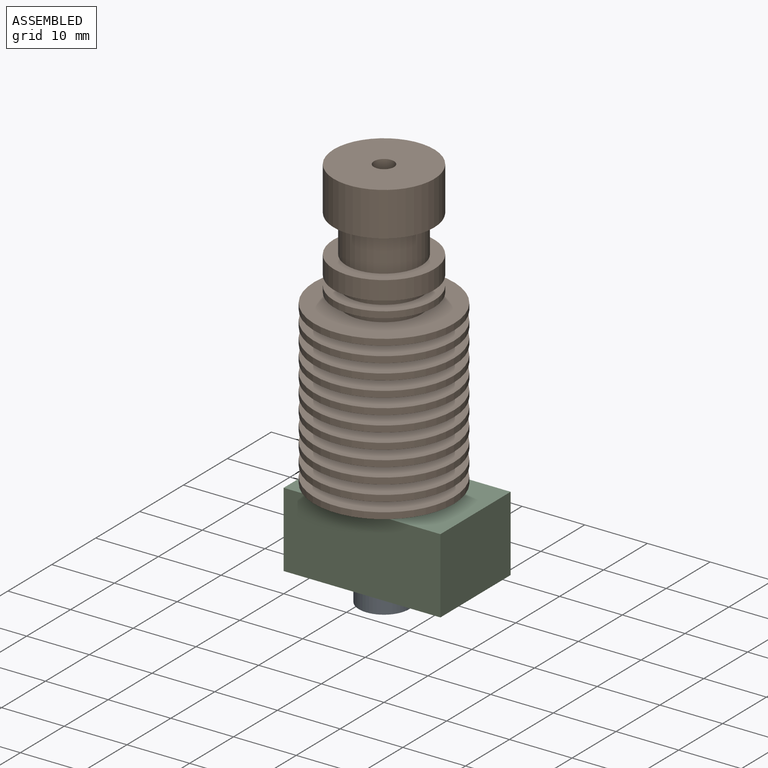
[diagram: assembled view]
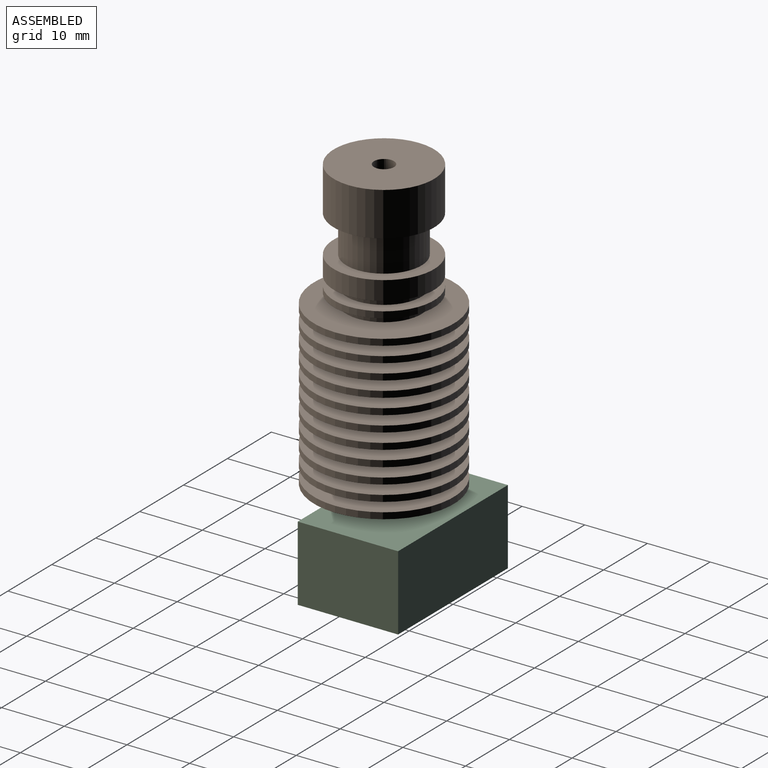
[diagram: assembled view, second angle]
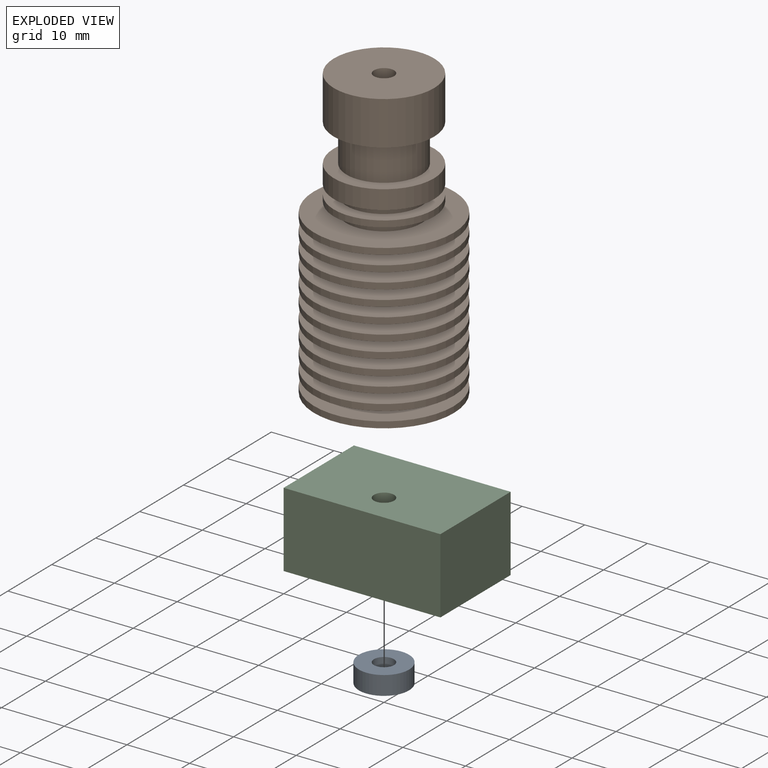
[diagram: exploded view]
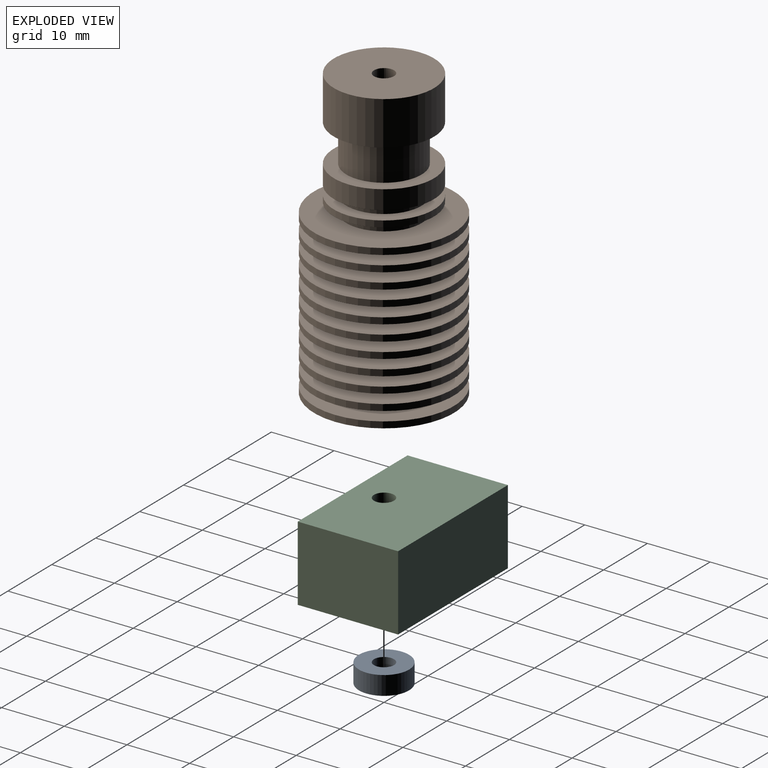
[diagram: exploded view, second angle]
ASSEMBLY  parts=3 mates=2
PART A: 7 faces, bbox 8x8x4.7 mm
  f0: cylinder r=1.6mm len=3.2mm, axis (0,0,1), area 21.2mm2, adj f1,f6
  f1: cone r=1.6mm half-angle=35deg, axis (0,0,-1), area 13.8mm2, adj f0,f2
  f2: cylinder r=0.2mm len=0.6mm, axis (0,0,1), area 0.7mm2, adj f1,f3
  f3: cone r=1.39mm half-angle=35deg, axis (0,0,-1), area 10.4mm2, adj f2,f4
  f4: plane 8x8mm, normal (0,0,1), area 44.2mm2, adj f3,f5
  f5: cylinder r=4mm len=8mm, axis (0,0,1), area 75.4mm2, adj f4,f6
  f6: plane 8x8mm, normal (0,0,-1), area 42.2mm2, adj f0,f5
PART B: 58 faces, bbox 22.3x22.3x48.1 mm
  f0: cylinder r=2.4mm len=4.8mm, axis (0,0,-1), area 31.7mm2, adj f1,f57
  f1: plane 4.8x4.8mm, normal (0,0,-1), area 10.1mm2, adj f0,f2
  f2: cylinder r=1.6mm len=48.1mm, axis (0,0,-1), area 483.6mm2, adj f1,f3
  f3: plane 16x16mm, normal (0,0,1), area 193mm2, adj f2,f4
  f4: cylinder r=8mm len=16mm, axis (0,0,-1), area 351.9mm2, adj f3,f5
  f5: plane 16x16mm, normal (0,0,-1), area 88mm2, adj f4,f6
  f6: cylinder r=6mm len=12mm, axis (0,0,-1), area 226.2mm2, adj f5,f7
  f7: plane 16x16mm, normal (0,0,1), area 88mm2, adj f6,f8
  f8: cylinder r=8mm len=16mm, axis (0,0,-1), area 150.8mm2, adj f7,f9
  f9: plane 16x16mm, normal (0,0,-1), area 88mm2, adj f8,f10
  f10: cylinder r=6mm len=12mm, axis (0,0,-1), area 56.5mm2, adj f9,f11
  f11: plane 16x16mm, normal (0,0,1), area 88mm2, adj f10,f12
  f12: cylinder r=8mm len=16mm, axis (0,0,-1), area 50.3mm2, adj f11,f13
  f13: plane 16x16mm, normal (0,0,-1), area 88mm2, adj f12,f14
  f14: cylinder r=6mm len=12mm, axis (0,0,-1), area 56.5mm2, adj f13,f15
  f15: plane 22.3x22.3mm, normal (0,0,1), area 277.5mm2, adj f14,f16
  f16: cylinder r=11.15mm len=22.3mm, axis (0,0,-1), area 70.1mm2, adj f15,f17
  f17: plane 22.3x22.3mm, normal (0,0,-1), area 277.5mm2, adj f16,f18
  f18: cylinder r=6mm len=12mm, axis (0,0,-1), area 56.5mm2, adj f17,f19
  f19: plane 22.3x22.3mm, normal (0,0,1), area 277.5mm2, adj f18,f20
  f20: cylinder r=11.15mm len=22.3mm, axis (0,0,-1), area 70.1mm2, adj f19,f21
  f21: plane 22.3x22.3mm, normal (0,0,-1), area 277.5mm2, adj f20,f22
  f22: cylinder r=6mm len=12mm, axis (0,0,-1), area 56.5mm2, adj f21,f23
  f23: plane 22.3x22.3mm, normal (0,0,1), area 277.5mm2, adj f22,f24
  f24: cylinder r=11.15mm len=22.3mm, axis (0,0,-1), area 70.1mm2, adj f23,f25
  f25: plane 22.3x22.3mm, normal (0,0,-1), area 277.5mm2, adj f24,f26
  f26: cylinder r=6mm len=12mm, axis (0,0,-1), area 56.5mm2, adj f25,f27
  f27: plane 22.3x22.3mm, normal (0,0,1), area 277.5mm2, adj f26,f28
  f28: cylinder r=11.15mm len=22.3mm, axis (0,0,-1), area 70.1mm2, adj f27,f29
  f29: plane 22.3x22.3mm, normal (0,0,-1), area 277.5mm2, adj f28,f30
  f30: cylinder r=6mm len=12mm, axis (0,0,-1), area 56.5mm2, adj f29,f31
  f31: plane 22.3x22.3mm, normal (0,0,1), area 277.5mm2, adj f30,f32
  f32: cylinder r=11.15mm len=22.3mm, axis (0,0,-1), area 70.1mm2, adj f31,f33
  f33: plane 22.3x22.3mm, normal (0,0,-1), area 277.5mm2, adj f32,f34
  f34: cylinder r=6mm len=12mm, axis (0,0,-1), area 56.5mm2, adj f33,f35
  f35: plane 22.3x22.3mm, normal (0,0,1), area 277.5mm2, adj f34,f36
  f36: cylinder r=11.15mm len=22.3mm, axis (0,0,-1), area 70.1mm2, adj f35,f37
  f37: plane 22.3x22.3mm, normal (0,0,-1), area 277.5mm2, adj f36,f38
  f38: cylinder r=6mm len=12mm, axis (0,0,-1), area 56.5mm2, adj f37,f39
  f39: plane 22.3x22.3mm, normal (0,0,1), area 277.5mm2, adj f38,f40
  f40: cylinder r=11.15mm len=22.3mm, axis (0,0,-1), area 70.1mm2, adj f39,f41
  f41: plane 22.3x22.3mm, normal (0,0,-1), area 277.5mm2, adj f40,f42
  f42: cylinder r=6mm len=12mm, axis (0,0,-1), area 56.5mm2, adj f41,f43
  f43: plane 22.3x22.3mm, normal (0,0,1), area 277.5mm2, adj f42,f44
  f44: cylinder r=11.15mm len=22.3mm, axis (0,0,-1), area 70.1mm2, adj f43,f45
  f45: plane 22.3x22.3mm, normal (0,0,-1), area 277.5mm2, adj f44,f46
  f46: cylinder r=6mm len=12mm, axis (0,0,-1), area 56.5mm2, adj f45,f47
  f47: plane 22.3x22.3mm, normal (0,0,1), area 277.5mm2, adj f46,f48
  f48: cylinder r=11.15mm len=22.3mm, axis (0,0,-1), area 70.1mm2, adj f47,f49
  f49: plane 22.3x22.3mm, normal (0,0,-1), area 277.5mm2, adj f48,f50
  f50: cylinder r=6mm len=12mm, axis (0,0,-1), area 56.5mm2, adj f49,f51
  f51: plane 22.3x22.3mm, normal (0,0,1), area 277.5mm2, adj f50,f52
  f52: cylinder r=11.15mm len=22.3mm, axis (0,0,-1), area 70.1mm2, adj f51,f53
  f53: plane 22.3x22.3mm, normal (0,0,-1), area 277.5mm2, adj f52,f54
  f54: cylinder r=6mm len=12mm, axis (0,0,-1), area 56.5mm2, adj f53,f55
  f55: plane 22.3x22.3mm, normal (0,0,1), area 277.5mm2, adj f54,f56
  f56: cylinder r=11.15mm len=22.3mm, axis (0,0,-1), area 70.1mm2, adj f55,f57
  f57: plane 22.3x22.3mm, normal (0,0,-1), area 372.5mm2, adj f0,f56
PART C: 7 faces, bbox 25x16x12 mm
  f0: plane 25x16mm, normal (0,0,1), area 392mm2, adj f2,f3,f4,f5,f6
  f1: plane 25x16mm, normal (0,0,-1), area 392mm2, adj f2,f3,f4,f5,f6
  f2: plane 25x12mm, normal (0,1,0), area 300mm2, adj f0,f1,f3,f5
  f3: plane 16x12mm, normal (-1,0,0), area 192mm2, adj f0,f1,f2,f4
  f4: plane 25x12mm, normal (0,-1,0), area 300mm2, adj f0,f1,f3,f5
  f5: plane 16x12mm, normal (1,0,0), area 192mm2, adj f0,f1,f2,f4
  f6: cylinder r=1.6mm len=12mm, axis (0,0,1), area 120.6mm2, adj f0,f1
PLACE A rot(axis=(1,0,0),180deg) t=(32.03,0,0)mm
PLACE B t=(0,0,14.1)mm
PLACE C t=(62.37,-5,0)mm
MATE fastened A.f0 <-> C.f6  axis (0,0,1) through (0,0,0)mm
MATE fastened B.f0 <-> C.f6  axis (0,0,-1) through (0,0,12)mm
